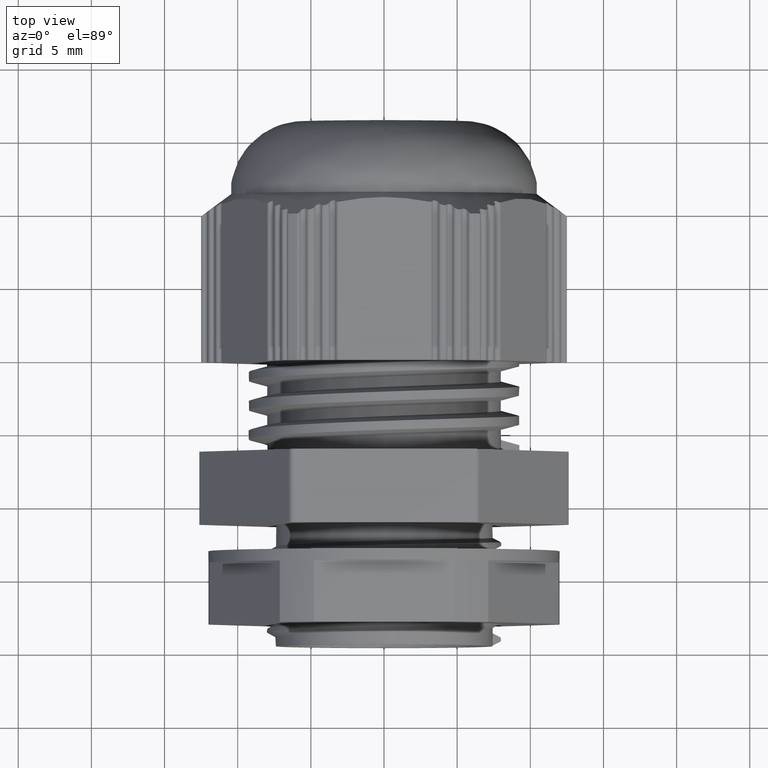
[diagram: clean part render]
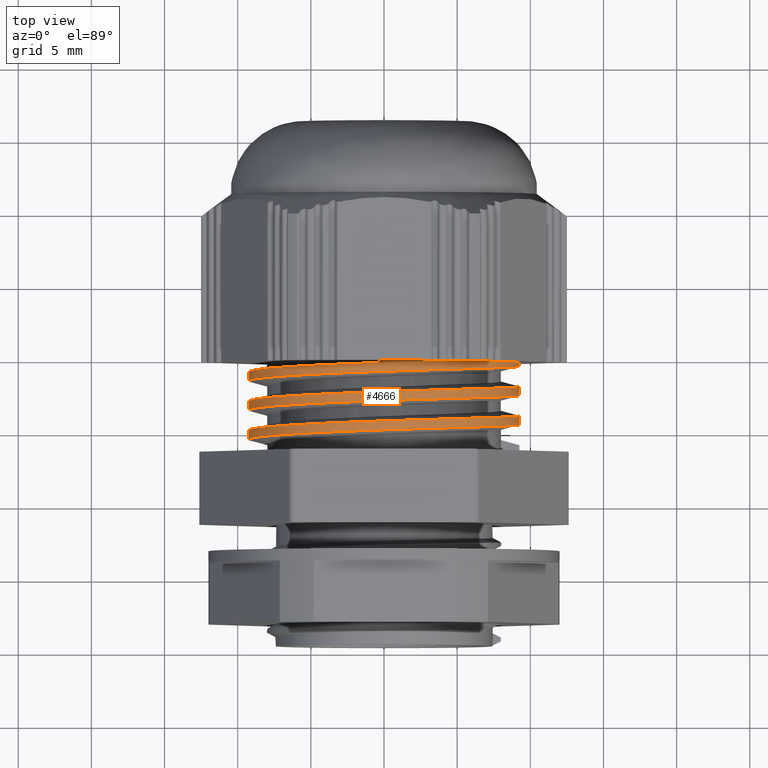
[diagram: same view with one face highlighted and labeled with its STEP entity id]
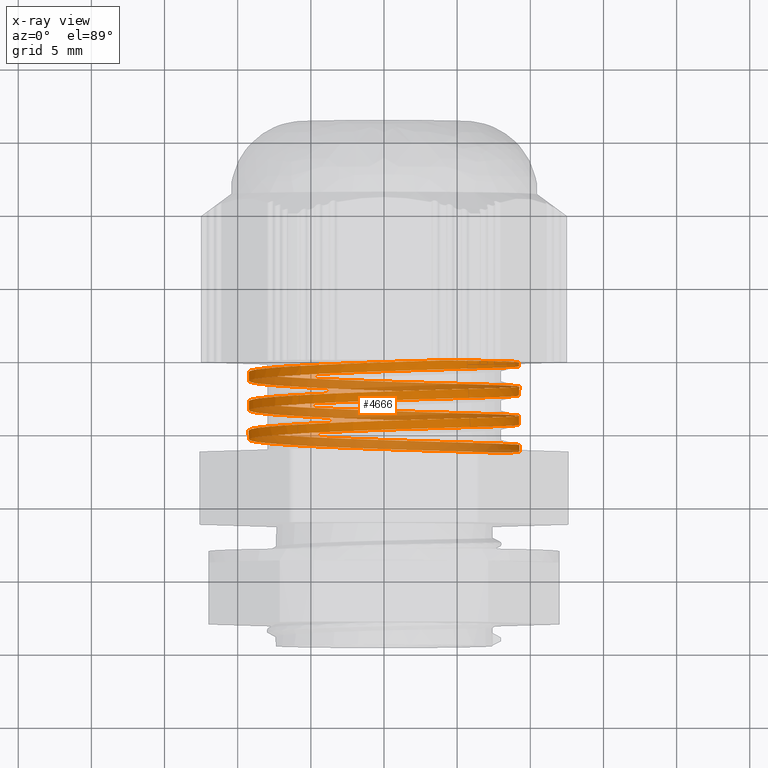
[diagram: x-ray of the same camera — body ghosted, the highlighted face saturated]
A machine part, top view. The second image highlights one B-rep face of the part: STEP entity #4666.
The next image is the same camera in x-ray: the body ghosted, the highlighted face saturated — about 44% of this face is hidden behind the body in this view.
In plain terms, the highlighted face is a freeform B-spline surface patch.
Its self-contained STEP definition (entity closure, byte-faithful):
#55 =( BOUNDED_CURVE ( )  B_SPLINE_CURVE ( 2, ( #7909, #7956, #7957, #7915, #7955, #7903, #7916, #7900, #7950, #7924, #7905, #7918, #7951, #7952, #7910, #7920, #7923, #7922, #7944, #7901, #7953, #7949, #7943, #7926, #7948, #7954, #7904, #7931, #7907, #7908, #7937, #7927, #7911, #7936, #7912, #7913, #7928, #7929, #7930, #7934, #7940, #7932, #7933, #7935, #7938, #7939, #7941, #7945, #7947, #7100, #7098, #7094, #7107, #7110, #7088, #7082, #7096, #7102, #7109, #7101, #7126, #7099, #7089, #7122, #7086 ),
 .UNSPECIFIED., .F., .F. ) 
 B_SPLINE_CURVE_WITH_KNOTS ( ( 3, 2, 2, 2, 2, 2, 2, 2, 2, 2, 2, 2, 2, 2, 2, 2, 2, 2, 2, 2, 2, 2, 2, 2, 2, 2, 2, 2, 2, 2, 2, 2, 3 ),
 ( 0.01643536291151419200, 0.02000000000000000000, 0.04000000000000000100, 0.05999999999999999800, 0.08000000000000000200, 0.1000000000000000100, 0.1199999999999999800, 0.1400000000000000100, 0.1600000000000000300, 0.1799999999999999900, 0.2000000000000000100, 0.2200000000000000300, 0.2399999999999999900, 0.2600000000000000100, 0.2800000000000000300, 0.2999999999999999900, 0.3200000000000000100, 0.3400000000000000200, 0.3599999999999999900, 0.3800000000000000000, 0.4000000000000000200, 0.4199999999999999800, 0.4400000000000000600, 0.4600000000000000200, 0.4799999999999999800, 0.5000000000000000000, 0.5200000000000000200, 0.5400000000000000400, 0.5600000000000000500, 0.5799999999999999600, 0.5999999999999999800, 0.6200000000000000000, 0.6259700711880114000 ),
 .UNSPECIFIED. ) 
 CURVE ( )  GEOMETRIC_REPRESENTATION_ITEM ( )  RATIONAL_B_SPLINE_CURVE ( ( 0.9856629598194921500, 0.9912767121373001800, 1.000000000000000000, 0.9510565162951535300, 1.000000000000000000, 0.9510565162951535300, 1.000000000000000000, 0.9510565162951535300, 1.000000000000000000, 0.9510565162951535300, 1.000000000000000000, 0.9510565162951535300, 1.000000000000000000, 0.9510565162951535300, 1.000000000000000000, 0.9510565162951535300, 1.000000000000000000, 0.9510565162951535300, 1.000000000000000000, 0.9510565162951535300, 1.000000000000000000, 0.9510565162951535300, 1.000000000000000000, 0.9510565162951535300, 1.000000000000000000, 0.9510565162951535300, 1.000000000000000000, 0.9510565162951535300, 1.000000000000000000, 0.9510565162951535300, 1.000000000000000000, 0.9510565162951535300, 1.000000000000000000, 0.9510565162951535300, 1.000000000000000000, 0.9510565162951535300, 1.000000000000000000, 0.9510565162951535300, 1.000000000000000000, 0.9510565162951535300, 1.000000000000000000, 0.9510565162951535300, 1.000000000000000000, 0.9510565162951535300, 1.000000000000000000, 0.9510565162951535300, 1.000000000000000000, 0.9510565162951535300, 1.000000000000000000, 0.9510565162951535300, 1.000000000000000000, 0.9510565162951535300, 1.000000000000000000, 0.9510565162951535300, 1.000000000000000000, 0.9510565162951535300, 1.000000000000000000, 0.9510565162951535300, 1.000000000000000000, 0.9510565162951535300, 1.000000000000000000, 0.9510565162951535300, 1.000000000000000000, 0.9853901959046395000, 0.9795025488584991900 ) ) 
 REPRESENTATION_ITEM ( '' )  );
#57 =( BOUNDED_CURVE ( )  B_SPLINE_CURVE ( 2, ( #2751, #2719, #2749, #2747, #2725, #2716, #2754, #2717, #2706, #2720, #2727, #2708, #2734, #2736, #2709, #2710, #2738, #2721, #2740, #2741, #2722, #2723, #2724, #1699, #2015, #2178, #2186, #2307, #2389, #2439, #2462, #2499, #2546, #2612, #2655, #7872, #7854, #7884, #7866, #7852, #7891, #7870, #7893, #7853, #7892, #7888, #7874, #7861, #7855, #7856, #7865, #7894, #7881, #7871, #7886, #7859, #7876, #7885, #7858 ),
 .UNSPECIFIED., .F., .T. ) 
 B_SPLINE_CURVE_WITH_KNOTS ( ( 3, 2, 2, 2, 2, 2, 2, 2, 2, 2, 2, 2, 2, 2, 2, 2, 2, 2, 2, 2, 2, 2, 2, 2, 2, 2, 2, 2, 2, 3 ),
 ( 0.0000000000000000000, 0.02000000000000000000, 0.04000000000000000100, 0.06000000000000000500, 0.08000000000000000200, 0.1000000000000000100, 0.1200000000000000100, 0.1400000000000000100, 0.1600000000000000000, 0.1799999999999999900, 0.2000000000000000100, 0.2200000000000000000, 0.2400000000000000200, 0.2600000000000000100, 0.2800000000000000300, 0.2999999999999999900, 0.3200000000000000100, 0.3400000000000000200, 0.3599999999999999900, 0.3800000000000000000, 0.4000000000000000200, 0.4199999999999999800, 0.4400000000000000000, 0.4600000000000000200, 0.4800000000000000400, 0.5000000000000000000, 0.5200000000000000200, 0.5400000000000000400, 0.5600000000000000500, 0.5644045003198490100 ),
 .UNSPECIFIED. ) 
 CURVE ( )  GEOMETRIC_REPRESENTATION_ITEM ( )  RATIONAL_B_SPLINE_CURVE ( ( 1.000000000000000000, 0.9510565162951535300, 1.000000000000000000, 0.9510565162951535300, 1.000000000000000000, 0.9510565162951535300, 1.000000000000000000, 0.9510565162951535300, 1.000000000000000000, 0.9510565162951535300, 1.000000000000000000, 0.9510565162951535300, 1.000000000000000000, 0.9510565162951535300, 1.000000000000000000, 0.9510565162951535300, 1.000000000000000000, 0.9510565162951535300, 1.000000000000000000, 0.9510565162951535300, 1.000000000000000000, 0.9510565162951535300, 1.000000000000000000, 0.9510565162951535300, 1.000000000000000000, 0.9510565162951535300, 1.000000000000000000, 0.9510565162951535300, 1.000000000000000000, 0.9510565162951535300, 1.000000000000000000, 0.9510565162951535300, 1.000000000000000000, 0.9510565162951535300, 1.000000000000000000, 0.9510565162951535300, 1.000000000000000000, 0.9510565162951535300, 1.000000000000000000, 0.9510565162951535300, 1.000000000000000000, 0.9510565162951535300, 1.000000000000000000, 0.9510565162951535300, 1.000000000000000000, 0.9510565162951535300, 1.000000000000000000, 0.9510565162951535300, 1.000000000000000000, 0.9510565162951535300, 1.000000000000000000, 0.9510565162951535300, 1.000000000000000000, 0.9510565162951535300, 1.000000000000000000, 0.9510565162951535300, 1.000000000000000000, 0.9892214205183740300, 0.9831902667141820800 ) ) 
 REPRESENTATION_ITEM ( '' )  );
#59 =( BOUNDED_SURFACE ( )  B_SPLINE_SURFACE ( 1, 2, ( 
 ( #7167, #7133, #7158, #7176, #7177, #7179, #7147, #7152, #7135, #7154, #7180, #7181, #7160, #7190, #7170, #7159, #7148, #7149, #7182, #7157, #7188, #7150, #7164, #7189, #7155, #7156, #7134, #7166, #7136, #7138, #7162, #7137, #7163, #7168, #7139, #7229, #7214, #7222, #7192, #7233, #7230, #7234, #7196, #7215, #7209, #7228, #7244, #7227, #7212, #7211, #7252, #7232, #7235, #7231, #7224, #7239, #7194, #7191, #7245, #7236, #7223, #7213, #7204, #7225, #7208, #7200, #7226, #7216, #7237, #7238, #7217, #7240, #7218, #7210, #7219, #7241, #7242, #7220, #7221, #7207, #7243, #7246, #7201, #7195, #7247, #7248, #7249, #7250, #7251, #7202, #7253 ),
 ( #7254, #7193, #7197, #7199, #7198, #7203, #7205, #7206, #7279, #7283, #7315, #7314, #7280, #7266, #7295, #7286, #7261, #7271, #7270, #7298, #7268, #7313, #7256, #7316, #7301, #7311, #7303, #7281, #7287, #7296, #7306, #7285, #7312, #7293, #7257, #7288, #7263, #7304, #7282, #7317, #7262, #7310, #7305, #7289, #7272, #7264, #7267, #7275, #7318, #7294, #7299, #7302, #7290, #7291, #7307, #7292, #7255, #7297, #7265, #7308, #7258, #7300, #7309, #7273, #7284, #7269, #7259, #7260, #7274, #7276, #7277, #7278, #7365, #7359, #7339, #7324, #7334, #7360, #7361, #7328, #7335, #7337, #7332, #7353, #7366, #7357, #7367, #7355, #7349, #7336, #7354 ) ),
 .UNSPECIFIED., .F., .F., .F. ) 
 B_SPLINE_SURFACE_WITH_KNOTS ( ( 2, 2 ),
 ( 3, 2, 2, 2, 2, 2, 2, 2, 2, 2, 2, 2, 2, 2, 2, 2, 2, 2, 2, 2, 2, 2, 2, 2, 2, 2, 2, 2, 2, 2, 2, 2, 2, 2, 2, 2, 2, 2, 2, 2, 2, 2, 2, 2, 2, 3 ),
 ( 0.0000000000000000000, 1.000000000000000000 ),
 ( 0.0000000000000000000, 0.02000000000000000000, 0.04000000000000000100, 0.05999999999999999800, 0.08000000000000000200, 0.1000000000000000100, 0.1200000000000000000, 0.1400000000000000100, 0.1600000000000000000, 0.1799999999999999900, 0.2000000000000000100, 0.2200000000000000000, 0.2399999999999999900, 0.2600000000000000100, 0.2800000000000000300, 0.2999999999999999900, 0.3200000000000000100, 0.3400000000000000200, 0.3599999999999999900, 0.3800000000000000000, 0.4000000000000000200, 0.4199999999999999800, 0.4400000000000000000, 0.4600000000000000200, 0.4799999999999999800, 0.5000000000000000000, 0.5200000000000000200, 0.5400000000000000400, 0.5600000000000000500, 0.5799999999999999600, 0.5999999999999999800, 0.6200000000000000000, 0.6400000000000000100, 0.6600000000000000300, 0.6800000000000000500, 0.6999999999999999600, 0.7199999999999999700, 0.7399999999999999900, 0.7600000000000000100, 0.7800000000000000300, 0.8000000000000000400, 0.8199999999999999500, 0.8399999999999999700, 0.8599999999999999900, 0.8800000000000000000, 0.9000000000000000200 ),
 .UNSPECIFIED. ) 
 GEOMETRIC_REPRESENTATION_ITEM ( )  RATIONAL_B_SPLINE_SURFACE ( (
 ( 1.000000000000000000, 0.9510565162951535300, 1.000000000000000000, 0.9510565162951535300, 1.000000000000000000, 0.9510565162951535300, 1.000000000000000000, 0.9510565162951535300, 1.000000000000000000, 0.9510565162951535300, 1.000000000000000000, 0.9510565162951535300, 1.000000000000000000, 0.9510565162951535300, 1.000000000000000000, 0.9510565162951535300, 1.000000000000000000, 0.9510565162951535300, 1.000000000000000000, 0.9510565162951535300, 1.000000000000000000, 0.9510565162951535300, 1.000000000000000000, 0.9510565162951535300, 1.000000000000000000, 0.9510565162951535300, 1.000000000000000000, 0.9510565162951535300, 1.000000000000000000, 0.9510565162951535300, 1.000000000000000000, 0.9510565162951535300, 1.000000000000000000, 0.9510565162951535300, 1.000000000000000000, 0.9510565162951535300, 1.000000000000000000, 0.9510565162951535300, 1.000000000000000000, 0.9510565162951535300, 1.000000000000000000, 0.9510565162951535300, 1.000000000000000000, 0.9510565162951535300, 1.000000000000000000, 0.9510565162951535300, 1.000000000000000000, 0.9510565162951535300, 1.000000000000000000, 0.9510565162951535300, 1.000000000000000000, 0.9510565162951535300, 1.000000000000000000, 0.9510565162951535300, 1.000000000000000000, 0.9510565162951535300, 1.000000000000000000, 0.9510565162951535300, 1.000000000000000000, 0.9510565162951535300, 1.000000000000000000, 0.9510565162951535300, 1.000000000000000000, 0.9510565162951535300, 1.000000000000000000, 0.9510565162951535300, 1.000000000000000000, 0.9510565162951535300, 1.000000000000000000, 0.9510565162951535300, 1.000000000000000000, 0.9510565162951535300, 1.000000000000000000, 0.9510565162951535300, 1.000000000000000000, 0.9510565162951535300, 1.000000000000000000, 0.9510565162951535300, 1.000000000000000000, 0.9510565162951535300, 1.000000000000000000, 0.9510565162951535300, 1.000000000000000000, 0.9510565162951535300, 1.000000000000000000, 0.9510565162951535300, 1.000000000000000000, 0.9510565162951535300, 1.000000000000000000, 0.9510565162951535300, 1.000000000000000000),
 ( 1.000000000000000000, 0.9510565162951535300, 1.000000000000000000, 0.9510565162951535300, 1.000000000000000000, 0.9510565162951535300, 1.000000000000000000, 0.9510565162951535300, 1.000000000000000000, 0.9510565162951535300, 1.000000000000000000, 0.9510565162951535300, 1.000000000000000000, 0.9510565162951535300, 1.000000000000000000, 0.9510565162951535300, 1.000000000000000000, 0.9510565162951535300, 1.000000000000000000, 0.9510565162951535300, 1.000000000000000000, 0.9510565162951535300, 1.000000000000000000, 0.9510565162951535300, 1.000000000000000000, 0.9510565162951535300, 1.000000000000000000, 0.9510565162951535300, 1.000000000000000000, 0.9510565162951535300, 1.000000000000000000, 0.9510565162951535300, 1.000000000000000000, 0.9510565162951535300, 1.000000000000000000, 0.9510565162951535300, 1.000000000000000000, 0.9510565162951535300, 1.000000000000000000, 0.9510565162951535300, 1.000000000000000000, 0.9510565162951535300, 1.000000000000000000, 0.9510565162951535300, 1.000000000000000000, 0.9510565162951535300, 1.000000000000000000, 0.9510565162951535300, 1.000000000000000000, 0.9510565162951535300, 1.000000000000000000, 0.9510565162951535300, 1.000000000000000000, 0.9510565162951535300, 1.000000000000000000, 0.9510565162951535300, 1.000000000000000000, 0.9510565162951535300, 1.000000000000000000, 0.9510565162951535300, 1.000000000000000000, 0.9510565162951535300, 1.000000000000000000, 0.9510565162951535300, 1.000000000000000000, 0.9510565162951535300, 1.000000000000000000, 0.9510565162951535300, 1.000000000000000000, 0.9510565162951535300, 1.000000000000000000, 0.9510565162951535300, 1.000000000000000000, 0.9510565162951535300, 1.000000000000000000, 0.9510565162951535300, 1.000000000000000000, 0.9510565162951535300, 1.000000000000000000, 0.9510565162951535300, 1.000000000000000000, 0.9510565162951535300, 1.000000000000000000, 0.9510565162951535300, 1.000000000000000000, 0.9510565162951535300, 1.000000000000000000, 0.9510565162951535300, 1.000000000000000000, 0.9510565162951535300, 1.000000000000000000) ) ) 
 REPRESENTATION_ITEM ( '' )  SURFACE ( )  );
#1699 = CARTESIAN_POINT ( 'NONE',  ( 5.718285599571844500, 1.441290793505072900, -7.870544915340305500 ) ) ;
#2015 = CARTESIAN_POINT ( 'NONE',  ( 2.859142799786231300, 1.541290793505073900, -8.799536725333348700 ) ) ;
#2178 = CARTESIAN_POINT ( 'NONE',  ( 6.165989555655543100E-013, 1.641290793505073100, -9.728528535326393700 ) ) ;
#2186 = CARTESIAN_POINT ( 'NONE',  ( -2.859142799785117500, 1.741290793505074100, -8.799536725333711100 ) ) ;
#2307 = CARTESIAN_POINT ( 'NONE',  ( -5.718285599570847900, 1.841290793505074000, -7.870544915341028500 ) ) ;
#2389 = CARTESIAN_POINT ( 'NONE',  ( -7.485333028528084600, 1.941290793505074500, -5.438412781509544700 ) ) ;
#2439 = CARTESIAN_POINT ( 'NONE',  ( -9.252380457485321200, 2.041290793505074100, -3.006280647678057200 ) ) ;
#2460 = CARTESIAN_POINT ( 'NONE',  ( 9.252380457485516600, -1.309188576519718000, 5.858539097258187000E-013 ) ) ;
#2462 = CARTESIAN_POINT ( 'NONE',  ( -9.252380457485516600, 2.141290793505073800, -5.869869995369940200E-013 ) ) ;
#2468 = CARTESIAN_POINT ( 'NONE',  ( 9.149440834475170100, -1.309188576519717100, -1.589226707585173400 ) ) ;
#2469 = CARTESIAN_POINT ( 'NONE',  ( 8.041731102181183000, -1.309188576519718000, -4.575708143038805400 ) ) ;
#2479 = CARTESIAN_POINT ( 'NONE',  ( 8.744507208113192900, -1.309188576519717300, -3.125940306359025200 ) ) ;
#2480 = CARTESIAN_POINT ( 'NONE',  ( 9.252380457485566400, -1.309188576519718200, -0.8030792376691624500 ) ) ;
#2481 = CARTESIAN_POINT ( 'NONE',  ( 8.438088739461207400, -1.309188576519717500, -3.879116175268545700 ) ) ;
#2499 = CARTESIAN_POINT ( 'NONE',  ( -9.252380457485704900, 2.241290793505074800, 3.006280647676885700 ) ) ;
#2546 = CARTESIAN_POINT ( 'NONE',  ( -7.485333028528774700, 2.341290793505074000, 5.438412781508595200 ) ) ;
#2612 = CARTESIAN_POINT ( 'NONE',  ( -5.718285599571844500, 2.441290793505073600, 7.870544915340305500 ) ) ;
#2655 = CARTESIAN_POINT ( 'NONE',  ( -2.859142799786232600, 2.541290793505074100, 8.799536725333348700 ) ) ;
#2706 = CARTESIAN_POINT ( 'NONE',  ( -7.485333028528084600, -0.05870920649492629400, -5.438412781509544700 ) ) ;
#2708 = CARTESIAN_POINT ( 'NONE',  ( -9.252380457485704900, 0.2412907935050737400, 3.006280647676885700 ) ) ;
#2709 = CARTESIAN_POINT ( 'NONE',  ( -2.859142799786232600, 0.5412907935050739200, 8.799536725333348700 ) ) ;
#2710 = CARTESIAN_POINT ( 'NONE',  ( -6.177903566986745400E-013, 0.6412907935050732300, 9.728528535326393700 ) ) ;
#2716 = CARTESIAN_POINT ( 'NONE',  ( 6.165989555655543100E-013, -0.3587092064949261000, -9.728528535326393700 ) ) ;
#2717 = CARTESIAN_POINT ( 'NONE',  ( -5.718285599570847900, -0.1587092064949263400, -7.870544915341028500 ) ) ;
#2719 = CARTESIAN_POINT ( 'NONE',  ( 9.252380457485703100, -0.7587092064949259000, -3.006280647676886600 ) ) ;
#2720 = CARTESIAN_POINT ( 'NONE',  ( -9.252380457485321200, 0.04129079350507375300, -3.006280647678057200 ) ) ;
#2721 = CARTESIAN_POINT ( 'NONE',  ( 5.718285599570847900, 0.8412907935050735200, 7.870544915341033000 ) ) ;
#2722 = CARTESIAN_POINT ( 'NONE',  ( 9.252380457485516600, 1.141290793505073800, 5.858539097258187000E-013 ) ) ;
#2723 = CARTESIAN_POINT ( 'NONE',  ( 9.252380457485703100, 1.241290793505074100, -3.006280647676886600 ) ) ;
#2724 = CARTESIAN_POINT ( 'NONE',  ( 7.485333028528774700, 1.341290793505074000, -5.438412781508597000 ) ) ;
#2725 = CARTESIAN_POINT ( 'NONE',  ( 2.859142799786231300, -0.4587092064949263000, -8.799536725333348700 ) ) ;
#2727 = CARTESIAN_POINT ( 'NONE',  ( -9.252380457485516600, 0.1412907935050736800, -5.869869995369940200E-013 ) ) ;
#2731 = LINE ( 'NONE', #2750, #3695 ) ;
#2732 = DIRECTION ( 'NONE',  ( 0.0000000000000000000, -1.000000000000000000, 0.0000000000000000000 ) ) ;
#2734 = CARTESIAN_POINT ( 'NONE',  ( -7.485333028528774700, 0.3412907935050739600, 5.438412781508595200 ) ) ;
#2736 = CARTESIAN_POINT ( 'NONE',  ( -5.718285599571844500, 0.4412907935050737200, 7.870544915340305500 ) ) ;
#2738 = CARTESIAN_POINT ( 'NONE',  ( 2.859142799785116700, 0.7412907935050737600, 8.799536725333711100 ) ) ;
#2740 = CARTESIAN_POINT ( 'NONE',  ( 7.485333028528084600, 0.9412907935050738300, 5.438412781509545500 ) ) ;
#2741 = CARTESIAN_POINT ( 'NONE',  ( 9.252380457485321200, 1.041290793505073500, 3.006280647678058600 ) ) ;
#2747 = CARTESIAN_POINT ( 'NONE',  ( 5.718285599571844500, -0.5587092064949266100, -7.870544915340305500 ) ) ;
#2749 = CARTESIAN_POINT ( 'NONE',  ( 7.485333028528774700, -0.6587092064949263700, -5.438412781508597000 ) ) ;
#2750 = CARTESIAN_POINT ( 'NONE',  ( 9.252380457485516600, -1.166593736519519400, 5.858539097258187000E-013 ) ) ;
#2751 = CARTESIAN_POINT ( 'NONE',  ( 9.252380457485516600, -0.8587092064949263200, 5.858539097258187000E-013 ) ) ;
#2754 = CARTESIAN_POINT ( 'NONE',  ( -2.859142799785117500, -0.2587092064949262900, -8.799536725333711100 ) ) ;
#3032 = CARTESIAN_POINT ( 'NONE',  ( 9.252380457485516600, -0.8587092064949263200, 5.858539097258187000E-013 ) ) ;
#3041 = CARTESIAN_POINT ( 'NONE',  ( 6.345948141035708400, 4.784379126765080600, -6.733163173526466300 ) ) ;
#3099 = CARTESIAN_POINT ( 'NONE',  ( 8.041731102181183000, -1.309188576519718000, -4.575708143038805400 ) ) ;
#3107 = CARTESIAN_POINT ( 'NONE',  ( 4.037228621592328500, 4.784379126764808800, 8.325102352947713100 ) ) ;
#3135 = CARTESIAN_POINT ( 'NONE',  ( 9.252380457485516600, -1.309188576519718000, 5.858539097258187000E-013 ) ) ;
#3695 = VECTOR ( 'NONE', #2732, 1000.000000000000000 ) ;
#4577 = EDGE_CURVE ( 'NONE', #14188, #14212, #10527, .T. ) ;
#4640 = EDGE_CURVE ( 'NONE', #14170, #14188, #2731, .T. ) ;
#4646 = EDGE_CURVE ( 'NONE', #14170, #14216, #57, .T. ) ;
#4653 = EDGE_CURVE ( 'NONE', #14212, #14154, #55, .T. ) ;
#4666 = ADVANCED_FACE ( 'NONE', ( #7161 ), #59, .T. ) ;
#4693 = EDGE_CURVE ( 'NONE', #14154, #14216, #10544, .T. ) ;
#7082 = CARTESIAN_POINT ( 'NONE',  ( -6.177903566986745400E-013, 4.025521733455887500, 9.728528535326393700 ) ) ;
#7086 = CARTESIAN_POINT ( 'NONE',  ( 6.345948141035708400, 4.784379126765080600, -6.733163173526466300 ) ) ;
#7088 = CARTESIAN_POINT ( 'NONE',  ( -2.859142799786232600, 3.925521733455887400, 8.799536725333348700 ) ) ;
#7089 = CARTESIAN_POINT ( 'NONE',  ( 7.485333028528774700, 4.725521733455887700, -5.438412781508597000 ) ) ;
#7094 = CARTESIAN_POINT ( 'NONE',  ( -9.252380457485704900, 3.625521733455886700, 3.006280647676885700 ) ) ;
#7096 = CARTESIAN_POINT ( 'NONE',  ( 2.859142799785116700, 4.125521733455887100, 8.799536725333711100 ) ) ;
#7098 = CARTESIAN_POINT ( 'NONE',  ( -9.252380457485516600, 3.525521733455887500, -5.869869995369940200E-013 ) ) ;
#7099 = CARTESIAN_POINT ( 'NONE',  ( 9.252380457485703100, 4.625521733455888000, -3.006280647676886600 ) ) ;
#7100 = CARTESIAN_POINT ( 'NONE',  ( -9.252380457485321200, 3.425521733455886500, -3.006280647678057200 ) ) ;
#7101 = CARTESIAN_POINT ( 'NONE',  ( 9.252380457485321200, 4.425521733455884300, 3.006280647678058600 ) ) ;
#7102 = CARTESIAN_POINT ( 'NONE',  ( 5.718285599570847900, 4.225521733455887700, 7.870544915341033000 ) ) ;
#7107 = CARTESIAN_POINT ( 'NONE',  ( -7.485333028528774700, 3.725521733455888600, 5.438412781508595200 ) ) ;
#7109 = CARTESIAN_POINT ( 'NONE',  ( 7.485333028528084600, 4.325521733455887300, 5.438412781509545500 ) ) ;
#7110 = CARTESIAN_POINT ( 'NONE',  ( -5.718285599571844500, 3.825521733455887800, 7.870544915340305500 ) ) ;
#7122 = CARTESIAN_POINT ( 'NONE',  ( 6.976241571668426300, 4.754332021652898800, -6.139117058597605600 ) ) ;
#7126 = CARTESIAN_POINT ( 'NONE',  ( 9.252380457485516600, 4.525521733455887500, 5.858539097258187000E-013 ) ) ;
#7133 = CARTESIAN_POINT ( 'NONE',  ( 9.252380457485703100, -0.7587092064949256800, -3.006280647676886600 ) ) ;
#7134 = CARTESIAN_POINT ( 'NONE',  ( -2.859142799785117500, 1.741290793505074100, -8.799536725333711100 ) ) ;
#7135 = CARTESIAN_POINT ( 'NONE',  ( -7.485333028528084600, -0.05870920649492619000, -5.438412781509544700 ) ) ;
#7136 = CARTESIAN_POINT ( 'NONE',  ( -7.485333028528084600, 1.941290793505074500, -5.438412781509544700 ) ) ;
#7137 = CARTESIAN_POINT ( 'NONE',  ( -9.252380457485704900, 2.241290793505074800, 3.006280647676886200 ) ) ;
#7138 = CARTESIAN_POINT ( 'NONE',  ( -9.252380457485321200, 2.041290793505074100, -3.006280647678057200 ) ) ;
#7139 = CARTESIAN_POINT ( 'NONE',  ( -2.859142799786232600, 2.541290793505074100, 8.799536725333348700 ) ) ;
#7147 = CARTESIAN_POINT ( 'NONE',  ( -2.859142799785117500, -0.2587092064949261800, -8.799536725333711100 ) ) ;
#7148 = CARTESIAN_POINT ( 'NONE',  ( 2.859142799785116700, 0.7412907935050738800, 8.799536725333711100 ) ) ;
#7149 = CARTESIAN_POINT ( 'NONE',  ( 5.718285599570847900, 0.8412907935050736300, 7.870544915341031200 ) ) ;
#7150 = CARTESIAN_POINT ( 'NONE',  ( 9.252380457485703100, 1.241290793505074100, -3.006280647676886600 ) ) ;
#7152 = CARTESIAN_POINT ( 'NONE',  ( -5.718285599570849700, -0.1587092064949262300, -7.870544915341028500 ) ) ;
#7154 = CARTESIAN_POINT ( 'NONE',  ( -9.252380457485321200, 0.04129079350507385700, -3.006280647678057200 ) ) ;
#7155 = CARTESIAN_POINT ( 'NONE',  ( 2.859142799786231300, 1.541290793505073900, -8.799536725333348700 ) ) ;
#7156 = CARTESIAN_POINT ( 'NONE',  ( 6.165989555655543100E-013, 1.641290793505073300, -9.728528535326395500 ) ) ;
#7157 = CARTESIAN_POINT ( 'NONE',  ( 9.252380457485321200, 1.041290793505073700, 3.006280647678058100 ) ) ;
#7158 = CARTESIAN_POINT ( 'NONE',  ( 7.485333028528774700, -0.6587092064949262600, -5.438412781508597000 ) ) ;
#7159 = CARTESIAN_POINT ( 'NONE',  ( -6.177903566986745400E-013, 0.6412907935050742300, 9.728528535326395500 ) ) ;
#7160 = CARTESIAN_POINT ( 'NONE',  ( -7.485333028528774700, 0.3412907935050740200, 5.438412781508595200 ) ) ;
#7161 = FACE_OUTER_BOUND ( 'NONE', #9469, .T. ) ;
#7162 = CARTESIAN_POINT ( 'NONE',  ( -9.252380457485516600, 2.141290793505073800, -5.869869995369940200E-013 ) ) ;
#7163 = CARTESIAN_POINT ( 'NONE',  ( -7.485333028528774700, 2.341290793505074000, 5.438412781508595200 ) ) ;
#7164 = CARTESIAN_POINT ( 'NONE',  ( 7.485333028528774700, 1.341290793505074000, -5.438412781508597000 ) ) ;
#7166 = CARTESIAN_POINT ( 'NONE',  ( -5.718285599570849700, 1.841290793505074000, -7.870544915341028500 ) ) ;
#7167 = CARTESIAN_POINT ( 'NONE',  ( 9.252380457485516600, -0.8587092064949262100, 5.858539097258187000E-013 ) ) ;
#7168 = CARTESIAN_POINT ( 'NONE',  ( -5.718285599571844500, 2.441290793505073600, 7.870544915340304600 ) ) ;
#7170 = CARTESIAN_POINT ( 'NONE',  ( -2.859142799786232600, 0.5412907935050739200, 8.799536725333348700 ) ) ;
#7176 = CARTESIAN_POINT ( 'NONE',  ( 5.718285599571844500, -0.5587092064949266100, -7.870544915340304600 ) ) ;
#7177 = CARTESIAN_POINT ( 'NONE',  ( 2.859142799786231300, -0.4587092064949261900, -8.799536725333348700 ) ) ;
#7179 = CARTESIAN_POINT ( 'NONE',  ( 6.165989555655543100E-013, -0.3587092064949259900, -9.728528535326395500 ) ) ;
#7180 = CARTESIAN_POINT ( 'NONE',  ( -9.252380457485516600, 0.1412907935050737900, -5.869869995369940200E-013 ) ) ;
#7181 = CARTESIAN_POINT ( 'NONE',  ( -9.252380457485704900, 0.2412907935050738500, 3.006280647676886200 ) ) ;
#7182 = CARTESIAN_POINT ( 'NONE',  ( 7.485333028528084600, 0.9412907935050739400, 5.438412781509545500 ) ) ;
#7188 = CARTESIAN_POINT ( 'NONE',  ( 9.252380457485516600, 1.141290793505073800, 5.858539097258187000E-013 ) ) ;
#7189 = CARTESIAN_POINT ( 'NONE',  ( 5.718285599571844500, 1.441290793505072700, -7.870544915340304600 ) ) ;
#7190 = CARTESIAN_POINT ( 'NONE',  ( -5.718285599571844500, 0.4412907935050738300, 7.870544915340304600 ) ) ;
#7191 = CARTESIAN_POINT ( 'NONE',  ( 5.718285599570847900, 4.841290793505074000, 7.870544915341031200 ) ) ;
#7192 = CARTESIAN_POINT ( 'NONE',  ( 7.485333028528084600, 2.941290793505073600, 5.438412781509545500 ) ) ;
#7193 = CARTESIAN_POINT ( 'NONE',  ( 9.252380457485703100, -1.374478266544112200, -3.006280647676886600 ) ) ;
#7194 = CARTESIAN_POINT ( 'NONE',  ( 2.859142799785116700, 4.741290793505073400, 8.799536725333711100 ) ) ;
#7195 = CARTESIAN_POINT ( 'NONE',  ( 5.718285599571844500, 7.441290793505070100, -7.870544915340304600 ) ) ;
#7196 = CARTESIAN_POINT ( 'NONE',  ( 7.485333028528774700, 3.341290793505074400, -5.438412781508597000 ) ) ;
#7197 = CARTESIAN_POINT ( 'NONE',  ( 7.485333028528774700, -1.274478266544112600, -5.438412781508597000 ) ) ;
#7198 = CARTESIAN_POINT ( 'NONE',  ( 2.859142799786231300, -1.074478266544112800, -8.799536725333348700 ) ) ;
#7199 = CARTESIAN_POINT ( 'NONE',  ( 5.718285599571844500, -1.174478266544111800, -7.870544915340304600 ) ) ;
#7200 = CARTESIAN_POINT ( 'NONE',  ( 6.165989555655543100E-013, 5.641290793505073800, -9.728528535326395500 ) ) ;
#7201 = CARTESIAN_POINT ( 'NONE',  ( 7.485333028528774700, 7.341290793505076600, -5.438412781508597000 ) ) ;
#7202 = CARTESIAN_POINT ( 'NONE',  ( -9.252380457485321200, 8.041290793505076800, -3.006280647678057200 ) ) ;
#7203 = CARTESIAN_POINT ( 'NONE',  ( 6.165989555655543100E-013, -0.9744782665441126300, -9.728528535326395500 ) ) ;
#7204 = CARTESIAN_POINT ( 'NONE',  ( 7.485333028528774700, 5.341290793505074900, -5.438412781508597000 ) ) ;
#7205 = CARTESIAN_POINT ( 'NONE',  ( -2.859142799785117500, -0.8744782665441126500, -8.799536725333711100 ) ) ;
#7206 = CARTESIAN_POINT ( 'NONE',  ( -5.718285599570849700, -0.7744782665441127800, -7.870544915341028500 ) ) ;
#7207 = CARTESIAN_POINT ( 'NONE',  ( 9.252380457485321200, 7.041290793505070600, 3.006280647678058100 ) ) ;
#7208 = CARTESIAN_POINT ( 'NONE',  ( 2.859142799786231300, 5.541290793505074100, -8.799536725333348700 ) ) ;
#7209 = CARTESIAN_POINT ( 'NONE',  ( 2.859142799786231300, 3.541290793505074100, -8.799536725333348700 ) ) ;
#7210 = CARTESIAN_POINT ( 'NONE',  ( -5.718285599571844500, 6.441290793505071800, 7.870544915340304600 ) ) ;
#7211 = CARTESIAN_POINT ( 'NONE',  ( -9.252380457485321200, 4.041290793505075900, -3.006280647678057200 ) ) ;
#7212 = CARTESIAN_POINT ( 'NONE',  ( -7.485333028528084600, 3.941290793505074100, -5.438412781509544700 ) ) ;
#7213 = CARTESIAN_POINT ( 'NONE',  ( 9.252380457485703100, 5.241290793505070800, -3.006280647676886600 ) ) ;
#7214 = CARTESIAN_POINT ( 'NONE',  ( 2.859142799785116700, 2.741290793505074300, 8.799536725333711100 ) ) ;
#7215 = CARTESIAN_POINT ( 'NONE',  ( 5.718285599571844500, 3.441290793505073600, -7.870544915340304600 ) ) ;
#7216 = CARTESIAN_POINT ( 'NONE',  ( -5.718285599570849700, 5.841290793505074000, -7.870544915341028500 ) ) ;
#7217 = CARTESIAN_POINT ( 'NONE',  ( -9.252380457485516600, 6.141290793505073800, -5.869869995369940200E-013 ) ) ;
#7218 = CARTESIAN_POINT ( 'NONE',  ( -7.485333028528774700, 6.341290793505075700, 5.438412781508595200 ) ) ;
#7219 = CARTESIAN_POINT ( 'NONE',  ( -2.859142799786232600, 6.541290793505074100, 8.799536725333348700 ) ) ;
#7220 = CARTESIAN_POINT ( 'NONE',  ( 5.718285599570847900, 6.841290793505073100, 7.870544915341031200 ) ) ;
#7221 = CARTESIAN_POINT ( 'NONE',  ( 7.485333028528084600, 6.941290793505074500, 5.438412781509545500 ) ) ;
#7222 = CARTESIAN_POINT ( 'NONE',  ( 5.718285599570847900, 2.841290793505073500, 7.870544915341031200 ) ) ;
#7223 = CARTESIAN_POINT ( 'NONE',  ( 9.252380457485516600, 5.141290793505073800, 5.858539097258187000E-013 ) ) ;
#7224 = CARTESIAN_POINT ( 'NONE',  ( -2.859142799786232600, 4.541290793505074100, 8.799536725333348700 ) ) ;
#7225 = CARTESIAN_POINT ( 'NONE',  ( 5.718285599571844500, 5.441290793505074500, -7.870544915340304600 ) ) ;
#7226 = CARTESIAN_POINT ( 'NONE',  ( -2.859142799785117500, 5.741290793505073400, -8.799536725333711100 ) ) ;
#7227 = CARTESIAN_POINT ( 'NONE',  ( -5.718285599570849700, 3.841290793505074000, -7.870544915341028500 ) ) ;
#7228 = CARTESIAN_POINT ( 'NONE',  ( 6.165989555655543100E-013, 3.641290793505073800, -9.728528535326395500 ) ) ;
#7229 = CARTESIAN_POINT ( 'NONE',  ( -6.177903566986745400E-013, 2.641290793505072000, 9.728528535326395500 ) ) ;
#7230 = CARTESIAN_POINT ( 'NONE',  ( 9.252380457485516600, 3.141290793505073800, 5.858539097258187000E-013 ) ) ;
#7231 = CARTESIAN_POINT ( 'NONE',  ( -5.718285599571844500, 4.441290793505073600, 7.870544915340304600 ) ) ;
#7232 = CARTESIAN_POINT ( 'NONE',  ( -9.252380457485704900, 4.241290793505072500, 3.006280647676886200 ) ) ;
#7233 = CARTESIAN_POINT ( 'NONE',  ( 9.252380457485321200, 3.041290793505071900, 3.006280647678058100 ) ) ;
#7234 = CARTESIAN_POINT ( 'NONE',  ( 9.252380457485703100, 3.241290793505072500, -3.006280647676886600 ) ) ;
#7235 = CARTESIAN_POINT ( 'NONE',  ( -7.485333028528774700, 4.341290793505074000, 5.438412781508595200 ) ) ;
#7236 = CARTESIAN_POINT ( 'NONE',  ( 9.252380457485321200, 5.041290793505074100, 3.006280647678058100 ) ) ;
#7237 = CARTESIAN_POINT ( 'NONE',  ( -7.485333028528084600, 5.941290793505074500, -5.438412781509544700 ) ) ;
#7238 = CARTESIAN_POINT ( 'NONE',  ( -9.252380457485321200, 6.041290793505070600, -3.006280647678057200 ) ) ;
#7239 = CARTESIAN_POINT ( 'NONE',  ( -6.177903566986745400E-013, 4.641290793505073800, 9.728528535326395500 ) ) ;
#7240 = CARTESIAN_POINT ( 'NONE',  ( -9.252380457485704900, 6.241290793505074300, 3.006280647676886200 ) ) ;
#7241 = CARTESIAN_POINT ( 'NONE',  ( -6.177903566986745400E-013, 6.641290793505074700, 9.728528535326395500 ) ) ;
#7242 = CARTESIAN_POINT ( 'NONE',  ( 2.859142799785116700, 6.741290793505073400, 8.799536725333711100 ) ) ;
#7243 = CARTESIAN_POINT ( 'NONE',  ( 9.252380457485516600, 7.141290793505073800, 5.858539097258187000E-013 ) ) ;
#7244 = CARTESIAN_POINT ( 'NONE',  ( -2.859142799785117500, 3.741290793505075200, -8.799536725333711100 ) ) ;
#7245 = CARTESIAN_POINT ( 'NONE',  ( 7.485333028528084600, 4.941290793505074500, 5.438412781509545500 ) ) ;
#7246 = CARTESIAN_POINT ( 'NONE',  ( 9.252380457485703100, 7.241290793505073400, -3.006280647676886600 ) ) ;
#7247 = CARTESIAN_POINT ( 'NONE',  ( 2.859142799786231300, 7.541290793505075000, -8.799536725333348700 ) ) ;
#7248 = CARTESIAN_POINT ( 'NONE',  ( 6.165989555655543100E-013, 7.641290793505074700, -9.728528535326395500 ) ) ;
#7249 = CARTESIAN_POINT ( 'NONE',  ( -2.859142799785117500, 7.741290793505073400, -8.799536725333711100 ) ) ;
#7250 = CARTESIAN_POINT ( 'NONE',  ( -5.718285599570849700, 7.841290793505074900, -7.870544915341028500 ) ) ;
#7251 = CARTESIAN_POINT ( 'NONE',  ( -7.485333028528084600, 7.941290793505074500, -5.438412781509544700 ) ) ;
#7252 = CARTESIAN_POINT ( 'NONE',  ( -9.252380457485516600, 4.141290793505073800, -5.869869995369940200E-013 ) ) ;
#7253 = CARTESIAN_POINT ( 'NONE',  ( -9.252380457485516600, 8.141290793505074700, -5.869869995369940200E-013 ) ) ;
#7254 = CARTESIAN_POINT ( 'NONE',  ( 9.252380457485516600, -1.474478266544112700, 5.858539097258187000E-013 ) ) ;
#7255 = CARTESIAN_POINT ( 'NONE',  ( 2.859142799785116700, 4.125521733455887100, 8.799536725333711100 ) ) ;
#7256 = CARTESIAN_POINT ( 'NONE',  ( 7.485333028528774700, 0.7255217334558874400, -5.438412781508597000 ) ) ;
#7257 = CARTESIAN_POINT ( 'NONE',  ( -2.859142799786232600, 1.925521733455888100, 8.799536725333348700 ) ) ;
#7258 = CARTESIAN_POINT ( 'NONE',  ( 9.252380457485516600, 4.525521733455887500, 5.858539097258187000E-013 ) ) ;
#7259 = CARTESIAN_POINT ( 'NONE',  ( -2.859142799785117500, 5.125521733455887100, -8.799536725333711100 ) ) ;
#7260 = CARTESIAN_POINT ( 'NONE',  ( -5.718285599570849700, 5.225521733455887700, -7.870544915341028500 ) ) ;
#7261 = CARTESIAN_POINT ( 'NONE',  ( 2.859142799785116700, 0.1255217334558873500, 8.799536725333711100 ) ) ;
#7262 = CARTESIAN_POINT ( 'NONE',  ( 9.252380457485516600, 2.525521733455887500, 5.858539097258187000E-013 ) ) ;
#7263 = CARTESIAN_POINT ( 'NONE',  ( 2.859142799785116700, 2.125521733455887600, 8.799536725333711100 ) ) ;
#7264 = CARTESIAN_POINT ( 'NONE',  ( 6.165989555655543100E-013, 3.025521733455885700, -9.728528535326395500 ) ) ;
#7265 = CARTESIAN_POINT ( 'NONE',  ( 7.485333028528084600, 4.325521733455887300, 5.438412781509545500 ) ) ;
#7266 = CARTESIAN_POINT ( 'NONE',  ( -5.718285599571844500, -0.1744782665441124400, 7.870544915340304600 ) ) ;
#7267 = CARTESIAN_POINT ( 'NONE',  ( -2.859142799785117500, 3.125521733455887100, -8.799536725333711100 ) ) ;
#7268 = CARTESIAN_POINT ( 'NONE',  ( 9.252380457485516600, 0.5255217334558872600, 5.858539097258187000E-013 ) ) ;
#7269 = CARTESIAN_POINT ( 'NONE',  ( 6.165989555655543100E-013, 5.025521733455887500, -9.728528535326395500 ) ) ;
#7270 = CARTESIAN_POINT ( 'NONE',  ( 7.485333028528084600, 0.3255217334558874200, 5.438412781509545500 ) ) ;
#7271 = CARTESIAN_POINT ( 'NONE',  ( 5.718285599570847900, 0.2255217334558874100, 7.870544915341031200 ) ) ;
#7272 = CARTESIAN_POINT ( 'NONE',  ( 2.859142799786231300, 2.925521733455887400, -8.799536725333348700 ) ) ;
#7273 = CARTESIAN_POINT ( 'NONE',  ( 5.718285599571844500, 4.825521733455887300, -7.870544915340304600 ) ) ;
#7274 = CARTESIAN_POINT ( 'NONE',  ( -7.485333028528084600, 5.325521733455888200, -5.438412781509544700 ) ) ;
#7275 = CARTESIAN_POINT ( 'NONE',  ( -5.718285599570849700, 3.225521733455885400, -7.870544915341028500 ) ) ;
#7276 = CARTESIAN_POINT ( 'NONE',  ( -9.252380457485321200, 5.425521733455887800, -3.006280647678057200 ) ) ;
#7277 = CARTESIAN_POINT ( 'NONE',  ( -9.252380457485516600, 5.525521733455887500, -5.869869995369940200E-013 ) ) ;
#7278 = CARTESIAN_POINT ( 'NONE',  ( -9.252380457485704900, 5.625521733455888000, 3.006280647676886200 ) ) ;
#7279 = CARTESIAN_POINT ( 'NONE',  ( -7.485333028528084600, -0.6744782665441126900, -5.438412781509544700 ) ) ;
#7280 = CARTESIAN_POINT ( 'NONE',  ( -7.485333028528774700, -0.2744782665441126100, 5.438412781508595200 ) ) ;
#7281 = CARTESIAN_POINT ( 'NONE',  ( -5.718285599570849700, 1.225521733455887400, -7.870544915341028500 ) ) ;
#7282 = CARTESIAN_POINT ( 'NONE',  ( 7.485333028528084600, 2.325521733455887300, 5.438412781509545500 ) ) ;
#7283 = CARTESIAN_POINT ( 'NONE',  ( -9.252380457485321200, -0.5744782665441124900, -3.006280647678057200 ) ) ;
#7284 = CARTESIAN_POINT ( 'NONE',  ( 2.859142799786231300, 4.925521733455887800, -8.799536725333348700 ) ) ;
#7285 = CARTESIAN_POINT ( 'NONE',  ( -9.252380457485704900, 1.625521733455886700, 3.006280647676886200 ) ) ;
#7286 = CARTESIAN_POINT ( 'NONE',  ( -6.177903566986745400E-013, 0.02552173345588729100, 9.728528535326395500 ) ) ;
#7287 = CARTESIAN_POINT ( 'NONE',  ( -7.485333028528084600, 1.325521733455887300, -5.438412781509544700 ) ) ;
#7288 = CARTESIAN_POINT ( 'NONE',  ( -6.177903566986745400E-013, 2.025521733455887000, 9.728528535326395500 ) ) ;
#7289 = CARTESIAN_POINT ( 'NONE',  ( 5.718285599571844500, 2.825521733455886000, -7.870544915340304600 ) ) ;
#7290 = CARTESIAN_POINT ( 'NONE',  ( -7.485333028528774700, 3.725521733455888600, 5.438412781508595200 ) ) ;
#7291 = CARTESIAN_POINT ( 'NONE',  ( -5.718285599571844500, 3.825521733455887800, 7.870544915340304600 ) ) ;
#7292 = CARTESIAN_POINT ( 'NONE',  ( -6.177903566986745400E-013, 4.025521733455887500, 9.728528535326395500 ) ) ;
#7293 = CARTESIAN_POINT ( 'NONE',  ( -5.718285599571844500, 1.825521733455886400, 7.870544915340304600 ) ) ;
#7294 = CARTESIAN_POINT ( 'NONE',  ( -9.252380457485321200, 3.425521733455886500, -3.006280647678057200 ) ) ;
#7295 = CARTESIAN_POINT ( 'NONE',  ( -2.859142799786232600, -0.07447826654411274200, 8.799536725333348700 ) ) ;
#7296 = CARTESIAN_POINT ( 'NONE',  ( -9.252380457485321200, 1.425521733455887400, -3.006280647678057200 ) ) ;
#7297 = CARTESIAN_POINT ( 'NONE',  ( 5.718285599570847900, 4.225521733455887700, 7.870544915341031200 ) ) ;
#7298 = CARTESIAN_POINT ( 'NONE',  ( 9.252380457485321200, 0.4255217334558872900, 3.006280647678058100 ) ) ;
#7299 = CARTESIAN_POINT ( 'NONE',  ( -9.252380457485516600, 3.525521733455887500, -5.869869995369940200E-013 ) ) ;
#7300 = CARTESIAN_POINT ( 'NONE',  ( 9.252380457485703100, 4.625521733455888000, -3.006280647676886600 ) ) ;
#7301 = CARTESIAN_POINT ( 'NONE',  ( 2.859142799786231300, 0.9255217334558875100, -8.799536725333348700 ) ) ;
#7302 = CARTESIAN_POINT ( 'NONE',  ( -9.252380457485704900, 3.625521733455886700, 3.006280647676886200 ) ) ;
#7303 = CARTESIAN_POINT ( 'NONE',  ( -2.859142799785117500, 1.125521733455887600, -8.799536725333711100 ) ) ;
#7304 = CARTESIAN_POINT ( 'NONE',  ( 5.718285599570847900, 2.225521733455887200, 7.870544915341031200 ) ) ;
#7305 = CARTESIAN_POINT ( 'NONE',  ( 7.485333028528774700, 2.725521733455887700, -5.438412781508597000 ) ) ;
#7306 = CARTESIAN_POINT ( 'NONE',  ( -9.252380457485516600, 1.525521733455887300, -5.869869995369940200E-013 ) ) ;
#7307 = CARTESIAN_POINT ( 'NONE',  ( -2.859142799786232600, 3.925521733455887400, 8.799536725333348700 ) ) ;
#7308 = CARTESIAN_POINT ( 'NONE',  ( 9.252380457485321200, 4.425521733455885200, 3.006280647678058100 ) ) ;
#7309 = CARTESIAN_POINT ( 'NONE',  ( 7.485333028528774700, 4.725521733455887700, -5.438412781508597000 ) ) ;
#7310 = CARTESIAN_POINT ( 'NONE',  ( 9.252380457485703100, 2.625521733455887600, -3.006280647676886600 ) ) ;
#7311 = CARTESIAN_POINT ( 'NONE',  ( 6.165989555655543100E-013, 1.025521733455887300, -9.728528535326395500 ) ) ;
#7312 = CARTESIAN_POINT ( 'NONE',  ( -7.485333028528774700, 1.725521733455887400, 5.438412781508595200 ) ) ;
#7313 = CARTESIAN_POINT ( 'NONE',  ( 9.252380457485703100, 0.6255217334558874600, -3.006280647676886600 ) ) ;
#7314 = CARTESIAN_POINT ( 'NONE',  ( -9.252380457485704900, -0.3744782665441124300, 3.006280647676886200 ) ) ;
#7315 = CARTESIAN_POINT ( 'NONE',  ( -9.252380457485516600, -0.4744782665441126800, -5.869869995369940200E-013 ) ) ;
#7316 = CARTESIAN_POINT ( 'NONE',  ( 5.718285599571844500, 0.8255217334558867500, -7.870544915340304600 ) ) ;
#7317 = CARTESIAN_POINT ( 'NONE',  ( 9.252380457485321200, 2.425521733455887400, 3.006280647678058100 ) ) ;
#7318 = CARTESIAN_POINT ( 'NONE',  ( -7.485333028528084600, 3.325521733455887800, -5.438412781509544700 ) ) ;
#7324 = CARTESIAN_POINT ( 'NONE',  ( -6.177903566986745400E-013, 6.025521733455891000, 9.728528535326395500 ) ) ;
#7328 = CARTESIAN_POINT ( 'NONE',  ( 9.252380457485321200, 6.425521733455887800, 3.006280647678058100 ) ) ;
#7332 = CARTESIAN_POINT ( 'NONE',  ( 7.485333028528774700, 6.725521733455887700, -5.438412781508597000 ) ) ;
#7334 = CARTESIAN_POINT ( 'NONE',  ( 2.859142799785116700, 6.125521733455887100, 8.799536725333711100 ) ) ;
#7335 = CARTESIAN_POINT ( 'NONE',  ( 9.252380457485516600, 6.525521733455887500, 5.858539097258187000E-013 ) ) ;
#7336 = CARTESIAN_POINT ( 'NONE',  ( -9.252380457485321200, 7.425521733455887000, -3.006280647678057200 ) ) ;
#7337 = CARTESIAN_POINT ( 'NONE',  ( 9.252380457485703100, 6.625521733455884500, -3.006280647676886600 ) ) ;
#7339 = CARTESIAN_POINT ( 'NONE',  ( -2.859142799786232600, 5.925521733455887800, 8.799536725333348700 ) ) ;
#7349 = CARTESIAN_POINT ( 'NONE',  ( -7.485333028528084600, 7.325521733455890000, -5.438412781509544700 ) ) ;
#7353 = CARTESIAN_POINT ( 'NONE',  ( 5.718285599571844500, 6.825521733455887300, -7.870544915340304600 ) ) ;
#7354 = CARTESIAN_POINT ( 'NONE',  ( -9.252380457485516600, 7.525521733455888400, -5.869869995369940200E-013 ) ) ;
#7355 = CARTESIAN_POINT ( 'NONE',  ( -5.718285599570849700, 7.225521733455891200, -7.870544915341028500 ) ) ;
#7357 = CARTESIAN_POINT ( 'NONE',  ( 6.165989555655543100E-013, 7.025521733455885700, -9.728528535326395500 ) ) ;
#7359 = CARTESIAN_POINT ( 'NONE',  ( -5.718285599571844500, 5.825521733455883800, 7.870544915340304600 ) ) ;
#7360 = CARTESIAN_POINT ( 'NONE',  ( 5.718285599570847900, 6.225521733455885900, 7.870544915341031200 ) ) ;
#7361 = CARTESIAN_POINT ( 'NONE',  ( 7.485333028528084600, 6.325521733455889100, 5.438412781509545500 ) ) ;
#7365 = CARTESIAN_POINT ( 'NONE',  ( -7.485333028528774700, 5.725521733455887700, 5.438412781508595200 ) ) ;
#7366 = CARTESIAN_POINT ( 'NONE',  ( 2.859142799786231300, 6.925521733455888700, -8.799536725333348700 ) ) ;
#7367 = CARTESIAN_POINT ( 'NONE',  ( -2.859142799785117500, 7.125521733455887100, -8.799536725333711100 ) ) ;
#7607 = CARTESIAN_POINT ( 'NONE',  ( 6.345948141035708400, 4.784379126765080600, -6.733163173526466300 ) ) ;
#7759 = CARTESIAN_POINT ( 'NONE',  ( 6.893232180563572300, 4.784379126765349700, -6.217352692813700600 ) ) ;
#7767 = CARTESIAN_POINT ( 'NONE',  ( 7.979906762092984000, 4.784379126764811500, -4.697395759385550200 ) ) ;
#7779 = CARTESIAN_POINT ( 'NONE',  ( 7.376730216130113100, 4.784379126764810600, -5.634001627282004600 ) ) ;
#7793 = CARTESIAN_POINT ( 'NONE',  ( 6.985159780716780500, 4.784379126764808800, 6.078847581904137000 ) ) ;
#7794 = CARTESIAN_POINT ( 'NONE',  ( 6.204531084326205800, 4.784379126764812400, 6.873715678368115300 ) ) ;
#7796 = CARTESIAN_POINT ( 'NONE',  ( 9.148618248492372400, 4.784379126764813300, -1.569405454098463000 ) ) ;
#7799 = CARTESIAN_POINT ( 'NONE',  ( 8.810154711512577600, 4.784379126764812400, 2.850758915856667700 ) ) ;
#7803 = CARTESIAN_POINT ( 'NONE',  ( 9.089154417026362500, 4.784379126764808800, 1.769530668263577200 ) ) ;
#7804 = CARTESIAN_POINT ( 'NONE',  ( 7.892584445954216900, 4.784379126764811500, 4.886056092691117000 ) ) ;
#7809 = CARTESIAN_POINT ( 'NONE',  ( 4.713908441727165100, 4.784379126764807900, 7.996948893484840500 ) ) ;
#7810 = CARTESIAN_POINT ( 'NONE',  ( 6.474750717289999200, 4.784379126764809700, 6.619852584092624800 ) ) ;
#7812 = CARTESIAN_POINT ( 'NONE',  ( 9.011029380957245000, 4.784379126764810600, 2.132370027140901800 ) ) ;
#7817 = CARTESIAN_POINT ( 'NONE',  ( 4.037228621592328500, 4.784379126764808800, 8.325102352947713100 ) ) ;
#7821 = CARTESIAN_POINT ( 'NONE',  ( 8.485853064669097300, 4.784379126764811500, -3.706044116802155400 ) ) ;
#7822 = CARTESIAN_POINT ( 'NONE',  ( 5.349154737268289500, 4.784379126764813300, 7.585750063127300700 ) ) ;
#7823 = CARTESIAN_POINT ( 'NONE',  ( 8.994580308355605100, 4.784379126764809700, -2.295034427767539400 ) ) ;
#7826 = CARTESIAN_POINT ( 'NONE',  ( 9.201588552501805300, 4.784379126764808800, 1.036694223454034200 ) ) ;
#7828 = CARTESIAN_POINT ( 'NONE',  ( 9.235898789770262200, 4.784379126764807900, 0.6666973234018530600 ) ) ;
#7830 = CARTESIAN_POINT ( 'NONE',  ( 9.248538596097660000, 4.784379126764812400, -0.4577163619943141500 ) ) ;
#7831 = CARTESIAN_POINT ( 'NONE',  ( 8.161521793902998900, 4.784379126764812400, -4.374245905122873700 ) ) ;
#7838 = CARTESIAN_POINT ( 'NONE',  ( 8.629030088322377200, 4.784379126764808800, -3.359637230326537200 ) ) ;
#7839 = CARTESIAN_POINT ( 'NONE',  ( 9.259579327270017800, 4.784379126764808800, -0.08063781932062057100 ) ) ;
#7841 = CARTESIAN_POINT ( 'NONE',  ( 7.226792670837978600, 4.784379126764808800, 5.789644560301429300 ) ) ;
#7842 = CARTESIAN_POINT ( 'NONE',  ( 8.257181233684034900, 4.784379126764808800, 4.240433695683163000 ) ) ;
#7843 = CARTESIAN_POINT ( 'NONE',  ( 8.686487729440056400, 4.784379126764807900, 3.207868293303113700 ) ) ;
#7852 = CARTESIAN_POINT ( 'NONE',  ( 9.252380457485321200, 3.041290793505072400, 3.006280647678058600 ) ) ;
#7853 = CARTESIAN_POINT ( 'NONE',  ( 5.718285599571844500, 3.441290793505073600, -7.870544915340305500 ) ) ;
#7854 = CARTESIAN_POINT ( 'NONE',  ( 2.859142799785116700, 2.741290793505074300, 8.799536725333711100 ) ) ;
#7855 = CARTESIAN_POINT ( 'NONE',  ( -7.485333028528084600, 3.941290793505074100, -5.438412781509544700 ) ) ;
#7856 = CARTESIAN_POINT ( 'NONE',  ( -9.252380457485321200, 4.041290793505075000, -3.006280647678057200 ) ) ;
#7858 = CARTESIAN_POINT ( 'NONE',  ( 4.037228621592328500, 4.784379126764807900, 8.325102352947713100 ) ) ;
#7859 = CARTESIAN_POINT ( 'NONE',  ( -6.177903566986745400E-013, 4.641290793505074700, 9.728528535326393700 ) ) ;
#7861 = CARTESIAN_POINT ( 'NONE',  ( -5.718285599570847900, 3.841290793505074000, -7.870544915341028500 ) ) ;
#7865 = CARTESIAN_POINT ( 'NONE',  ( -9.252380457485516600, 4.141290793505073800, -5.869869995369940200E-013 ) ) ;
#7866 = CARTESIAN_POINT ( 'NONE',  ( 7.485333028528084600, 2.941290793505073600, 5.438412781509545500 ) ) ;
#7870 = CARTESIAN_POINT ( 'NONE',  ( 9.252380457485703100, 3.241290793505072500, -3.006280647676886600 ) ) ;
#7871 = CARTESIAN_POINT ( 'NONE',  ( -5.718285599571844500, 4.441290793505073600, 7.870544915340305500 ) ) ;
#7872 = CARTESIAN_POINT ( 'NONE',  ( -6.177903566986745400E-013, 2.641290793505072000, 9.728528535326393700 ) ) ;
#7874 = CARTESIAN_POINT ( 'NONE',  ( -2.859142799785117500, 3.741290793505075200, -8.799536725333711100 ) ) ;
#7876 = CARTESIAN_POINT ( 'NONE',  ( 2.859142799785116700, 4.741290793505073400, 8.799536725333711100 ) ) ;
#7881 = CARTESIAN_POINT ( 'NONE',  ( -7.485333028528774700, 4.341290793505074000, 5.438412781508595200 ) ) ;
#7884 = CARTESIAN_POINT ( 'NONE',  ( 5.718285599570847900, 2.841290793505073500, 7.870544915341033000 ) ) ;
#7885 = CARTESIAN_POINT ( 'NONE',  ( 3.464505015432342500, 4.762463650477889700, 8.602842618114779700 ) ) ;
#7886 = CARTESIAN_POINT ( 'NONE',  ( -2.859142799786232600, 4.541290793505074100, 8.799536725333348700 ) ) ;
#7888 = CARTESIAN_POINT ( 'NONE',  ( 6.165989555655543100E-013, 3.641290793505073800, -9.728528535326393700 ) ) ;
#7891 = CARTESIAN_POINT ( 'NONE',  ( 9.252380457485516600, 3.141290793505073800, 5.858539097258187000E-013 ) ) ;
#7892 = CARTESIAN_POINT ( 'NONE',  ( 2.859142799786231300, 3.541290793505074100, -8.799536725333348700 ) ) ;
#7893 = CARTESIAN_POINT ( 'NONE',  ( 7.485333028528774700, 3.341290793505074400, -5.438412781508597000 ) ) ;
#7894 = CARTESIAN_POINT ( 'NONE',  ( -9.252380457485704900, 4.241290793505071700, 3.006280647676885700 ) ) ;
#7900 = CARTESIAN_POINT ( 'NONE',  ( -5.718285599570847900, -0.7744782665441127800, -7.870544915341028500 ) ) ;
#7901 = CARTESIAN_POINT ( 'NONE',  ( 9.252380457485321200, 0.4255217334558872900, 3.006280647678058600 ) ) ;
#7903 = CARTESIAN_POINT ( 'NONE',  ( 6.165989555655543100E-013, -0.9744782665441126300, -9.728528535326393700 ) ) ;
#7904 = CARTESIAN_POINT ( 'NONE',  ( -2.859142799785117500, 1.125521733455887600, -8.799536725333711100 ) ) ;
#7905 = CARTESIAN_POINT ( 'NONE',  ( -9.252380457485516600, -0.4744782665441126800, -5.869869995369940200E-013 ) ) ;
#7907 = CARTESIAN_POINT ( 'NONE',  ( -7.485333028528084600, 1.325521733455887300, -5.438412781509544700 ) ) ;
#7908 = CARTESIAN_POINT ( 'NONE',  ( -9.252380457485321200, 1.425521733455887600, -3.006280647678057200 ) ) ;
#7909 = CARTESIAN_POINT ( 'NONE',  ( 8.041731102181183000, -1.309188576519718000, -4.575708143038805400 ) ) ;
#7910 = CARTESIAN_POINT ( 'NONE',  ( -2.859142799786232600, -0.07447826654411274200, 8.799536725333348700 ) ) ;
#7911 = CARTESIAN_POINT ( 'NONE',  ( -7.485333028528774700, 1.725521733455887400, 5.438412781508595200 ) ) ;
#7912 = CARTESIAN_POINT ( 'NONE',  ( -2.859142799786232600, 1.925521733455888100, 8.799536725333348700 ) ) ;
#7913 = CARTESIAN_POINT ( 'NONE',  ( -6.177903566986745400E-013, 2.025521733455887000, 9.728528535326393700 ) ) ;
#7915 = CARTESIAN_POINT ( 'NONE',  ( 5.718285599571844500, -1.174478266544112000, -7.870544915340305500 ) ) ;
#7916 = CARTESIAN_POINT ( 'NONE',  ( -2.859142799785117500, -0.8744782665441126500, -8.799536725333711100 ) ) ;
#7918 = CARTESIAN_POINT ( 'NONE',  ( -9.252380457485704900, -0.3744782665441124300, 3.006280647676885700 ) ) ;
#7920 = CARTESIAN_POINT ( 'NONE',  ( -6.177903566986745400E-013, 0.02552173345588729500, 9.728528535326393700 ) ) ;
#7922 = CARTESIAN_POINT ( 'NONE',  ( 5.718285599570847900, 0.2255217334558873900, 7.870544915341033000 ) ) ;
#7923 = CARTESIAN_POINT ( 'NONE',  ( 2.859142799785116700, 0.1255217334558873500, 8.799536725333711100 ) ) ;
#7924 = CARTESIAN_POINT ( 'NONE',  ( -9.252380457485321200, -0.5744782665441123800, -3.006280647678057200 ) ) ;
#7926 = CARTESIAN_POINT ( 'NONE',  ( 5.718285599571844500, 0.8255217334558867500, -7.870544915340305500 ) ) ;
#7927 = CARTESIAN_POINT ( 'NONE',  ( -9.252380457485704900, 1.625521733455886700, 3.006280647676885700 ) ) ;
#7928 = CARTESIAN_POINT ( 'NONE',  ( 2.859142799785116700, 2.125521733455887600, 8.799536725333711100 ) ) ;
#7929 = CARTESIAN_POINT ( 'NONE',  ( 5.718285599570847900, 2.225521733455887700, 7.870544915341033000 ) ) ;
#7930 = CARTESIAN_POINT ( 'NONE',  ( 7.485333028528084600, 2.325521733455887300, 5.438412781509545500 ) ) ;
#7931 = CARTESIAN_POINT ( 'NONE',  ( -5.718285599570847900, 1.225521733455887400, -7.870544915341028500 ) ) ;
#7932 = CARTESIAN_POINT ( 'NONE',  ( 9.252380457485703100, 2.625521733455887600, -3.006280647676886600 ) ) ;
#7933 = CARTESIAN_POINT ( 'NONE',  ( 7.485333028528774700, 2.725521733455887700, -5.438412781508597000 ) ) ;
#7934 = CARTESIAN_POINT ( 'NONE',  ( 9.252380457485321200, 2.425521733455887400, 3.006280647678058600 ) ) ;
#7935 = CARTESIAN_POINT ( 'NONE',  ( 5.718285599571844500, 2.825521733455886000, -7.870544915340305500 ) ) ;
#7936 = CARTESIAN_POINT ( 'NONE',  ( -5.718285599571844500, 1.825521733455886400, 7.870544915340305500 ) ) ;
#7937 = CARTESIAN_POINT ( 'NONE',  ( -9.252380457485516600, 1.525521733455887300, -5.869869995369940200E-013 ) ) ;
#7938 = CARTESIAN_POINT ( 'NONE',  ( 2.859142799786231300, 2.925521733455887400, -8.799536725333348700 ) ) ;
#7939 = CARTESIAN_POINT ( 'NONE',  ( 6.165989555655543100E-013, 3.025521733455886200, -9.728528535326393700 ) ) ;
#7940 = CARTESIAN_POINT ( 'NONE',  ( 9.252380457485516600, 2.525521733455887500, 5.858539097258187000E-013 ) ) ;
#7941 = CARTESIAN_POINT ( 'NONE',  ( -2.859142799785117500, 3.125521733455887100, -8.799536725333711100 ) ) ;
#7943 = CARTESIAN_POINT ( 'NONE',  ( 7.485333028528774700, 0.7255217334558874400, -5.438412781508597000 ) ) ;
#7944 = CARTESIAN_POINT ( 'NONE',  ( 7.485333028528084600, 0.3255217334558874200, 5.438412781509545500 ) ) ;
#7945 = CARTESIAN_POINT ( 'NONE',  ( -5.718285599570847900, 3.225521733455885900, -7.870544915341028500 ) ) ;
#7947 = CARTESIAN_POINT ( 'NONE',  ( -7.485333028528084600, 3.325521733455887800, -5.438412781509544700 ) ) ;
#7948 = CARTESIAN_POINT ( 'NONE',  ( 2.859142799786231300, 0.9255217334558875100, -8.799536725333348700 ) ) ;
#7949 = CARTESIAN_POINT ( 'NONE',  ( 9.252380457485703100, 0.6255217334558874600, -3.006280647676886600 ) ) ;
#7950 = CARTESIAN_POINT ( 'NONE',  ( -7.485333028528084600, -0.6744782665441126900, -5.438412781509544700 ) ) ;
#7951 = CARTESIAN_POINT ( 'NONE',  ( -7.485333028528774700, -0.2744782665441126100, 5.438412781508595200 ) ) ;
#7952 = CARTESIAN_POINT ( 'NONE',  ( -5.718285599571844500, -0.1744782665441124700, 7.870544915340305500 ) ) ;
#7953 = CARTESIAN_POINT ( 'NONE',  ( 9.252380457485516600, 0.5255217334558872600, 5.858539097258187000E-013 ) ) ;
#7954 = CARTESIAN_POINT ( 'NONE',  ( 6.165989555655543100E-013, 1.025521733455887300, -9.728528535326393700 ) ) ;
#7955 = CARTESIAN_POINT ( 'NONE',  ( 2.859142799786231300, -1.074478266544112800, -8.799536725333348700 ) ) ;
#7956 = CARTESIAN_POINT ( 'NONE',  ( 7.787498582365920200, -1.291578291641656700, -5.022517576217932600 ) ) ;
#7957 = CARTESIAN_POINT ( 'NONE',  ( 7.485333028528774700, -1.274478266544112600, -5.438412781508597000 ) ) ;
#9469 = EDGE_LOOP ( 'NONE', ( #12831, #12865, #12796, #12827, #12858 ) ) ;
#10527 = B_SPLINE_CURVE_WITH_KNOTS ( 'NONE', 3,
 ( #2460, #2480, #2468, #2479, #2481, #2469 ),
 .UNSPECIFIED., .F., .F.,
 ( 4, 2, 4 ),
 ( 0.006125179322276732800, 0.008534417035285978000, 0.01094365474829522300 ),
 .UNSPECIFIED. ) ;
#10544 = B_SPLINE_CURVE_WITH_KNOTS ( 'NONE', 3,
 ( #7607, #7759, #7779, #7767, #7831, #7821, #7838, #7823, #7796, #7830, #7839, #7828, #7826, #7803, #7812, #7799, #7843, #7842, #7804, #7841, #7793, #7810, #7794, #7822, #7809, #7817 ),
 .UNSPECIFIED., .F., .F.,
 ( 4, 2, 2, 2, 2, 2, 2, 2, 2, 2, 2, 2, 4 ),
 ( 1.092324945178244500E-016, 0.002251127694917976400, 0.003376691542376906600, 0.004502255389835837400, 0.006753383084753697900, 0.007878946932212629500, 0.009004510779671558500, 0.01013007462713048900, 0.01125563847458942200, 0.01350676616950728300, 0.01463233001696621200, 0.01575789386442514100, 0.01800902155934299600 ),
 .UNSPECIFIED. ) ;
#12796 = ORIENTED_EDGE ( 'NONE', *, *, #4646, .F. ) ;
#12827 = ORIENTED_EDGE ( 'NONE', *, *, #4640, .T. ) ;
#12831 = ORIENTED_EDGE ( 'NONE', *, *, #4653, .T. ) ;
#12858 = ORIENTED_EDGE ( 'NONE', *, *, #4577, .T. ) ;
#12865 = ORIENTED_EDGE ( 'NONE', *, *, #4693, .T. ) ;
#14154 = VERTEX_POINT ( 'NONE', #3041 ) ;
#14170 = VERTEX_POINT ( 'NONE', #3032 ) ;
#14188 = VERTEX_POINT ( 'NONE', #3135 ) ;
#14212 = VERTEX_POINT ( 'NONE', #3099 ) ;
#14216 = VERTEX_POINT ( 'NONE', #3107 ) ;